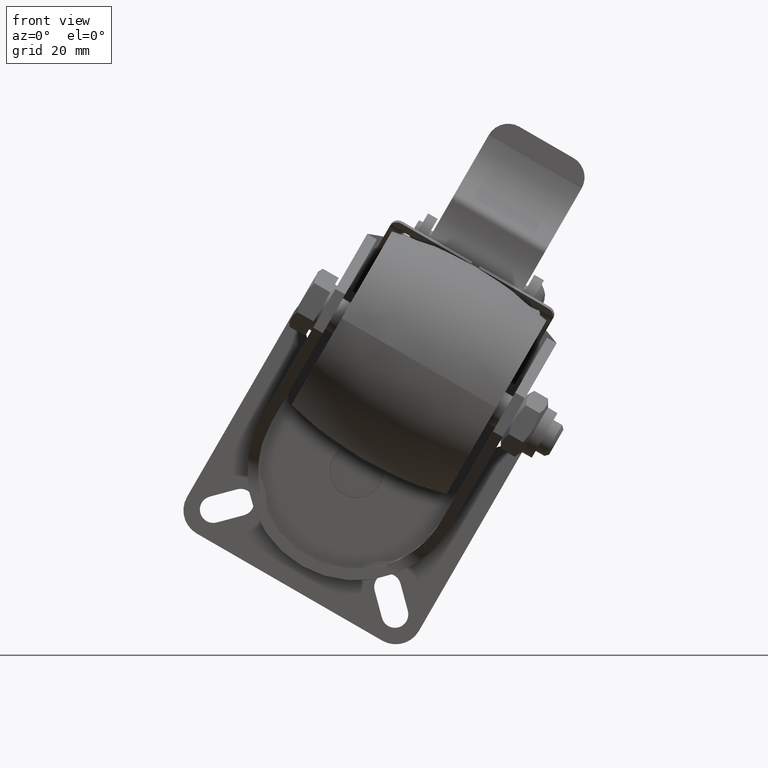
[diagram: clean part render]
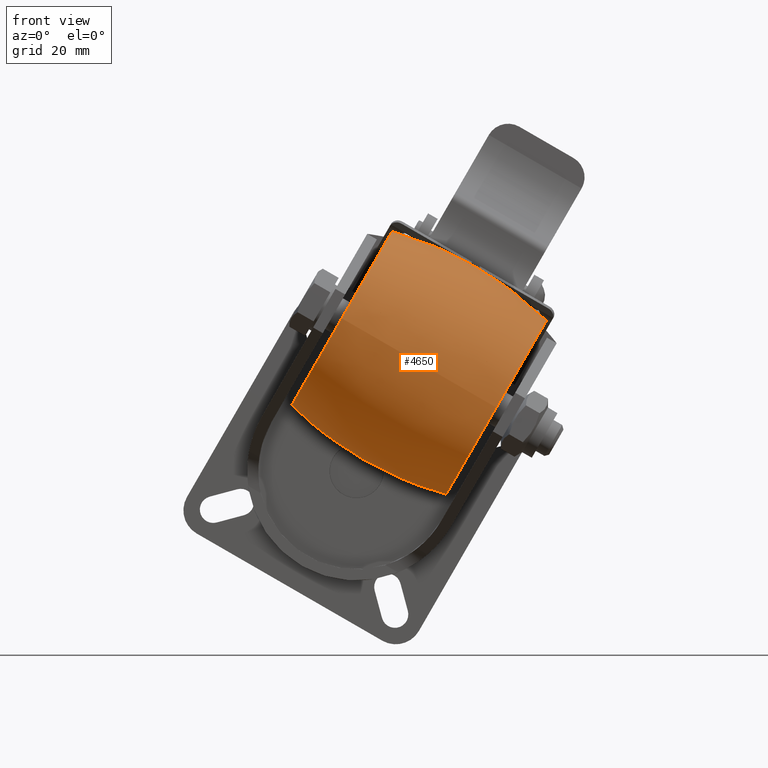
[diagram: same view with one face highlighted and labeled with its STEP entity id]
A machine part, front view. The second image highlights one B-rep face of the part: STEP entity #4650.
In plain terms, the highlighted face is a freeform B-spline surface patch.
Its self-contained STEP definition (entity closure, byte-faithful):
#60=(
BOUNDED_CURVE()
B_SPLINE_CURVE(2,(#7734,#7735,#7736),.UNSPECIFIED.,.F.,.F.)
B_SPLINE_CURVE_WITH_KNOTS((3,3),(-0.248709989093524,0.248709989093524),
 .UNSPECIFIED.)
CURVE()
GEOMETRIC_REPRESENTATION_ITEM()
RATIONAL_B_SPLINE_CURVE((1.,0.96923076923077,1.))
REPRESENTATION_ITEM('')
);
#87=(
BOUNDED_SURFACE()
B_SPLINE_SURFACE(2,2,((#7703,#7704,#7705,#7706,#7707,#7708,#7709,#7710,
#7711),(#7712,#7713,#7714,#7715,#7716,#7717,#7718,#7719,#7720),(#7721,#7722,
#7723,#7724,#7725,#7726,#7727,#7728,#7729)),.UNSPECIFIED.,.F.,.T.,.F.)
B_SPLINE_SURFACE_WITH_KNOTS((3,3),(3,2,2,2,3),(-0.248709989093524,0.248709989093524),
(-3.14159265358979,-1.5707963267949,0.,1.5707963267949,3.14159265358979),
 .UNSPECIFIED.)
GEOMETRIC_REPRESENTATION_ITEM()
RATIONAL_B_SPLINE_SURFACE(((1.,0.707106781186548,1.,0.707106781186548,1.,
0.707106781186548,1.,0.707106781186548,1.),(0.96923076923077,0.685349649457731,
0.96923076923077,0.685349649457731,0.96923076923077,0.685349649457731,0.96923076923077,
0.685349649457731,0.96923076923077),(1.,0.707106781186548,1.,0.707106781186548,
1.,0.707106781186548,1.,0.707106781186548,1.)))
REPRESENTATION_ITEM('')
SURFACE()
);
#558=FACE_OUTER_BOUND('',#895,.T.);
#895=EDGE_LOOP('',(#3667,#3668,#3669,#3670,#3671,#3672));
#1214=CIRCLE('',#5055,22.5);
#1215=CIRCLE('',#5056,22.5);
#1217=CIRCLE('',#5058,22.5);
#1218=CIRCLE('',#5059,22.5);
#2204=VERTEX_POINT('',#7697);
#2205=VERTEX_POINT('',#7698);
#2207=VERTEX_POINT('',#7730);
#2208=VERTEX_POINT('',#7731);
#2739=EDGE_CURVE('',#2204,#2205,#1214,.T.);
#2740=EDGE_CURVE('',#2205,#2204,#1215,.T.);
#2742=EDGE_CURVE('',#2207,#2208,#1217,.T.);
#2743=EDGE_CURVE('',#2208,#2207,#1218,.T.);
#2744=EDGE_CURVE('',#2208,#2205,#60,.T.);
#3667=ORIENTED_EDGE('',*,*,#2742,.F.);
#3668=ORIENTED_EDGE('',*,*,#2743,.F.);
#3669=ORIENTED_EDGE('',*,*,#2744,.T.);
#3670=ORIENTED_EDGE('',*,*,#2740,.T.);
#3671=ORIENTED_EDGE('',*,*,#2739,.T.);
#3672=ORIENTED_EDGE('',*,*,#2744,.F.);
#4650=ADVANCED_FACE('',(#558),#87,.F.);
#5055=AXIS2_PLACEMENT_3D('',#7699,#5987,#5988);
#5056=AXIS2_PLACEMENT_3D('',#7700,#5989,#5990);
#5058=AXIS2_PLACEMENT_3D('',#7732,#5993,#5994);
#5059=AXIS2_PLACEMENT_3D('',#7733,#5995,#5996);
#5987=DIRECTION('center_axis',(1.,0.,0.));
#5988=DIRECTION('ref_axis',(0.,0.,-1.));
#5989=DIRECTION('center_axis',(1.,0.,0.));
#5990=DIRECTION('ref_axis',(0.,0.,-1.));
#5993=DIRECTION('center_axis',(1.,0.,0.));
#5994=DIRECTION('ref_axis',(0.,0.,-1.));
#5995=DIRECTION('center_axis',(1.,0.,0.));
#5996=DIRECTION('ref_axis',(0.,0.,-1.));
#7697=CARTESIAN_POINT('',(-20.,22.5,0.));
#7698=CARTESIAN_POINT('',(-20.,0.,22.5));
#7699=CARTESIAN_POINT('Origin',(-20.,0.,0.));
#7700=CARTESIAN_POINT('Origin',(-20.,0.,0.));
#7703=CARTESIAN_POINT('Ctrl Pts',(-20.,0.,22.5));
#7704=CARTESIAN_POINT('Ctrl Pts',(-20.,-22.5,22.5));
#7705=CARTESIAN_POINT('Ctrl Pts',(-20.,-22.5,0.));
#7706=CARTESIAN_POINT('Ctrl Pts',(-20.,-22.5,-22.5));
#7707=CARTESIAN_POINT('Ctrl Pts',(-20.,0.,-22.5));
#7708=CARTESIAN_POINT('Ctrl Pts',(-20.,22.5,-22.5));
#7709=CARTESIAN_POINT('Ctrl Pts',(-20.,22.5,0.));
#7710=CARTESIAN_POINT('Ctrl Pts',(-20.,22.5,22.5));
#7711=CARTESIAN_POINT('Ctrl Pts',(-20.,0.,22.5));
#7712=CARTESIAN_POINT('Ctrl Pts',(-1.11022302462516E-15,0.,27.5793650793651));
#7713=CARTESIAN_POINT('Ctrl Pts',(-1.11022302462516E-15,-27.5793650793651,
27.5793650793651));
#7714=CARTESIAN_POINT('Ctrl Pts',(-1.11022302462516E-15,-27.5793650793651,
0.));
#7715=CARTESIAN_POINT('Ctrl Pts',(-1.11022302462516E-15,-27.5793650793651,
-27.5793650793651));
#7716=CARTESIAN_POINT('Ctrl Pts',(-1.11022302462516E-15,0.,-27.5793650793651));
#7717=CARTESIAN_POINT('Ctrl Pts',(-1.11022302462516E-15,27.5793650793651,
-27.5793650793651));
#7718=CARTESIAN_POINT('Ctrl Pts',(-1.11022302462516E-15,27.5793650793651,
0.));
#7719=CARTESIAN_POINT('Ctrl Pts',(-1.11022302462516E-15,27.5793650793651,
27.5793650793651));
#7720=CARTESIAN_POINT('Ctrl Pts',(-1.11022302462516E-15,0.,27.5793650793651));
#7721=CARTESIAN_POINT('Ctrl Pts',(20.,0.,22.5));
#7722=CARTESIAN_POINT('Ctrl Pts',(20.,-22.5,22.5));
#7723=CARTESIAN_POINT('Ctrl Pts',(20.,-22.5,0.));
#7724=CARTESIAN_POINT('Ctrl Pts',(20.,-22.5,-22.5));
#7725=CARTESIAN_POINT('Ctrl Pts',(20.,0.,-22.5));
#7726=CARTESIAN_POINT('Ctrl Pts',(20.,22.5,-22.5));
#7727=CARTESIAN_POINT('Ctrl Pts',(20.,22.5,0.));
#7728=CARTESIAN_POINT('Ctrl Pts',(20.,22.5,22.5));
#7729=CARTESIAN_POINT('Ctrl Pts',(20.,0.,22.5));
#7730=CARTESIAN_POINT('',(20.,22.5,0.));
#7731=CARTESIAN_POINT('',(20.,0.,22.5));
#7732=CARTESIAN_POINT('Origin',(20.,0.,0.));
#7733=CARTESIAN_POINT('Origin',(20.,0.,0.));
#7734=CARTESIAN_POINT('Ctrl Pts',(20.,0.,22.5));
#7735=CARTESIAN_POINT('Ctrl Pts',(-2.22044604925031E-15,0.,27.5793650793651));
#7736=CARTESIAN_POINT('Ctrl Pts',(-20.,0.,22.5));